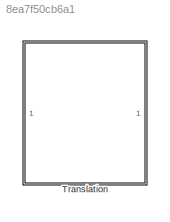
MODEL slx_8ea7f50cb6a1
KIND library
CONFIG AbsTol = auto
CONFIG EnableMultiTasking = off
CONFIG FixedStep = auto
CONFIG MaxStep = auto
CONFIG MinStep = auto
CONFIG RelTol = 1e-3
CONFIG SampleTimeConstraint = Unconstrained
CONFIG SolverName = VariableStepAuto
CONFIG StartTime = 0.0
CONFIG StopTime = 10.0
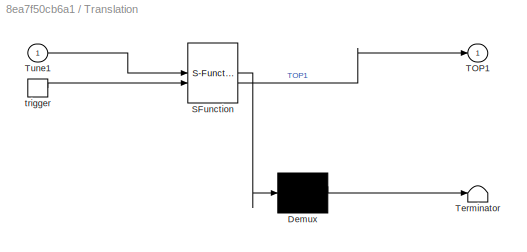
BLOCK [SubSystem] Translation
  ErrorFcn = Stateflow.Translate.translate
  PermitHierarchicalResolution = ExplicitOnly
  SFBlockType = MATLAB Function
  TreatAsAtomicUnit = on
BLOCK [Demux] Translation/ Demux 
  Outputs = 1
BLOCK [S-Function] Translation/ SFunction 
  EnableBusSupport = off
  FunctionName = sf_sfun
  PortCounts = [2 2]
  SFcnIsStateOwnerBlock = off
  SFunctionDeploymentMode = off
  Tag = Stateflow S-Function 8
BLOCK [Terminator] Translation/ Terminator 
BLOCK [Outport] Translation/TOP1
  VectorParamsAs1DForOutWhenUnconnected = off
BLOCK [Inport] Translation/Tune1
BLOCK [TriggerPort] Translation/trigger
  ShowOutputPort = on
  StatesWhenEnabling = held
  TriggerType = function-call
  VariantControl = Variant
CHART Translation states=1 transitions=1
  STATE_LABEL 'eML_blk_kernel()'
  STATE_LABEL 'SCRIPT:\nfunction TOP1  = fcn(Tune1)\n%#codegen\n\n% ----- To access TuneVar maximum size, current size, and current value:\n%   Note: TuneVar signals arrive with exposed variable size information.\n%         The expressions below illustrate for the "Tune1" input argument.\n%\n%   size(Tune1.Value) : the maximum possible size of the Tune1 variable\n%\n%   Tune.Size   : the current size of *valid* data in Tu...<+1371ch>'
CHART  states=0 transitions=0
